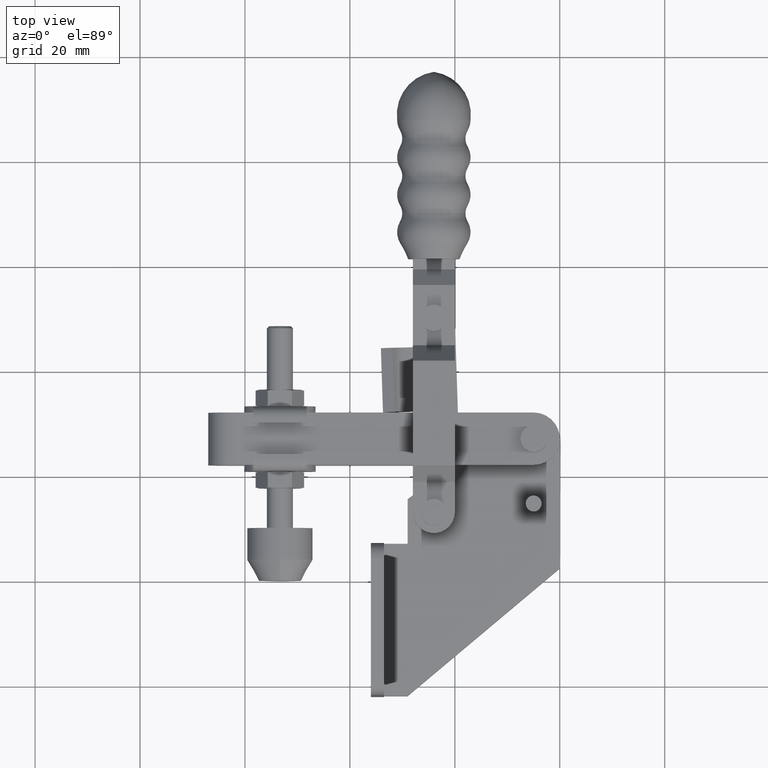
[diagram: clean part render]
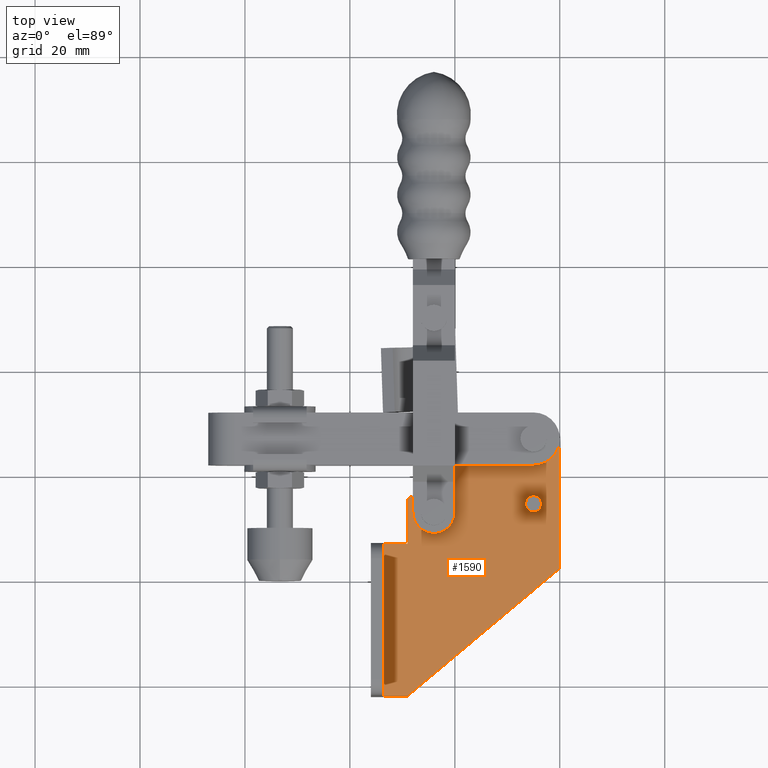
[diagram: same view with one face highlighted and labeled with its STEP entity id]
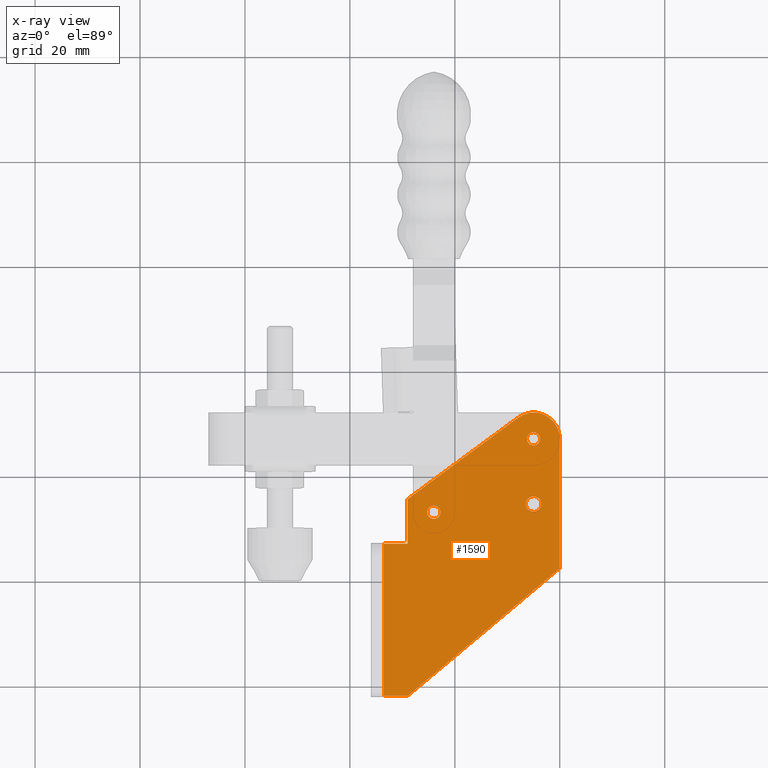
[diagram: x-ray of the same camera — body ghosted, the highlighted face saturated]
A machine part, top view. The second image highlights one B-rep face of the part: STEP entity #1590.
The next image is the same camera in x-ray: the body ghosted, the highlighted face saturated — about 0% of this face is hidden behind the body in this view.
In plain terms, the highlighted planar face has unit normal (0, 0, 1).
Its self-contained STEP definition (entity closure, byte-faithful):
#5 = EDGE_CURVE ( 'NONE', #3100, #9376, #5206, .T. ) ;
#19 = CARTESIAN_POINT ( 'NONE',  ( -6.249999999999770000, 27.00000000000003200, 2.500000000000041700 ) ) ;
#37 = FACE_BOUND ( 'NONE', #2437, .T. ) ;
#47 = LINE ( 'NONE', #8385, #1880 ) ;
#127 = EDGE_CURVE ( 'NONE', #5030, #8038, #3337, .T. ) ;
#130 = CARTESIAN_POINT ( 'NONE',  ( -4.999999999999769100, 27.00000000000003200, 2.500000000000041700 ) ) ;
#327 = EDGE_CURVE ( 'NONE', #4370, #1558, #7492, .T. ) ;
#735 = ORIENTED_EDGE ( 'NONE', *, *, #1019, .F. ) ;
#813 = ORIENTED_EDGE ( 'NONE', *, *, #7325, .F. ) ;
#868 = CARTESIAN_POINT ( 'NONE',  ( -22.74999999999989700, 13.00000000000001800, 2.500000000000041700 ) ) ;
#875 = AXIS2_PLACEMENT_3D ( 'NONE', #1736, #9979, #9383 ) ;
#925 = DIRECTION ( 'NONE',  ( 1.000000000000000000, 0.0000000000000000000, 0.0000000000000000000 ) ) ;
#961 = CARTESIAN_POINT ( 'NONE',  ( -28.99999999999979000, 7.020000000000015600, 2.500000000000041700 ) ) ;
#1019 = EDGE_CURVE ( 'NONE', #9376, #3100, #6730, .T. ) ;
#1064 = VECTOR ( 'NONE', #8188, 1000.000000000000000 ) ;
#1179 = ORIENTED_EDGE ( 'NONE', *, *, #1888, .T. ) ;
#1210 = CARTESIAN_POINT ( 'NONE',  ( -7.965995190249059600, 31.02527918676689500, 2.500000000000041700 ) ) ;
#1241 = CARTESIAN_POINT ( 'NONE',  ( -4.999999999999769100, 27.00000000000003200, 2.500000000000041700 ) ) ;
#1298 = ORIENTED_EDGE ( 'NONE', *, *, #2028, .F. ) ;
#1481 = CIRCLE ( 'NONE', #9185, 1.250000000000001100 ) ;
#1558 = VERTEX_POINT ( 'NONE', #4074 ) ;
#1590 = ADVANCED_FACE ( 'NONE', ( #37, #4216, #2358, #8217 ), #4252, .T. ) ;
#1622 = CARTESIAN_POINT ( 'NONE',  ( -3.749999999999769100, 27.00000000000003200, 2.500000000000041700 ) ) ;
#1736 = CARTESIAN_POINT ( 'NONE',  ( -23.99999999999989700, 13.00000000000001800, 2.500000000000041700 ) ) ;
#1763 = EDGE_LOOP ( 'NONE', ( #8063, #4008 ) ) ;
#1770 = EDGE_LOOP ( 'NONE', ( #1298, #813 ) ) ;
#1776 = VECTOR ( 'NONE', #6248, 1000.000000000000000 ) ;
#1880 = VECTOR ( 'NONE', #6748, 1000.000000000000100 ) ;
#1888 = EDGE_CURVE ( 'NONE', #5544, #7832, #5575, .T. ) ;
#2028 = EDGE_CURVE ( 'NONE', #5406, #8124, #9096, .T. ) ;
#2175 = AXIS2_PLACEMENT_3D ( 'NONE', #8582, #3758, #9345 ) ;
#2191 = DIRECTION ( 'NONE',  ( 0.7660444431189765700, 0.6427876096865410300, 0.0000000000000000000 ) ) ;
#2284 = CARTESIAN_POINT ( 'NONE',  ( -3.499999999999769500, 14.56000000000002400, 2.500000000000041700 ) ) ;
#2288 = EDGE_CURVE ( 'NONE', #7597, #4370, #6936, .T. ) ;
#2315 = DIRECTION ( 'NONE',  ( 0.0000000000000000000, 0.0000000000000000000, 1.000000000000000000 ) ) ;
#2355 = CARTESIAN_POINT ( 'NONE',  ( -33.49999999999958800, 7.020000000000015600, 2.500000000000041700 ) ) ;
#2358 = FACE_BOUND ( 'NONE', #1770, .T. ) ;
#2437 = EDGE_LOOP ( 'NONE', ( #8750, #735 ) ) ;
#2656 = VECTOR ( 'NONE', #2191, 1000.000000000000000 ) ;
#2904 = LINE ( 'NONE', #6947, #2656 ) ;
#2952 = VECTOR ( 'NONE', #9529, 1000.000000000000000 ) ;
#3100 = VERTEX_POINT ( 'NONE', #19 ) ;
#3337 = CIRCLE ( 'NONE', #2175, 1.500000000000000000 ) ;
#3357 = CARTESIAN_POINT ( 'NONE',  ( -28.99999999999979000, 7.020000000000015600, 2.500000000000041700 ) ) ;
#3359 = CARTESIAN_POINT ( 'NONE',  ( -6.499999999999770000, 14.56000000000002400, 2.500000000000041700 ) ) ;
#3492 = CARTESIAN_POINT ( 'NONE',  ( -23.99999999999989700, 13.00000000000001800, 2.500000000000041700 ) ) ;
#3709 = AXIS2_PLACEMENT_3D ( 'NONE', #7769, #7799, #7812 ) ;
#3758 = DIRECTION ( 'NONE',  ( 0.0000000000000000000, 0.0000000000000000000, 1.000000000000000000 ) ) ;
#3865 = ORIENTED_EDGE ( 'NONE', *, *, #5021, .T. ) ;
#3957 = ORIENTED_EDGE ( 'NONE', *, *, #9181, .T. ) ;
#4008 = ORIENTED_EDGE ( 'NONE', *, *, #127, .F. ) ;
#4074 = CARTESIAN_POINT ( 'NONE',  ( -28.99999999999957700, -21.97999999999998600, 2.500000000000041700 ) ) ;
#4216 = FACE_BOUND ( 'NONE', #1763, .T. ) ;
#4252 = PLANE ( 'NONE',  #8960 ) ;
#4304 = DIRECTION ( 'NONE',  ( 1.000000000000000000, 0.0000000000000000000, 0.0000000000000000000 ) ) ;
#4370 = VERTEX_POINT ( 'NONE', #8127 ) ;
#4402 = CARTESIAN_POINT ( 'NONE',  ( -4.999999999999769100, 14.56000000000002400, 2.500000000000041700 ) ) ;
#4437 = CARTESIAN_POINT ( 'NONE',  ( -23.99999999999989700, 13.00000000000001800, 2.500000000000041700 ) ) ;
#4462 = DIRECTION ( 'NONE',  ( 0.0000000000000000000, 0.0000000000000000000, 1.000000000000000000 ) ) ;
#4535 = DIRECTION ( 'NONE',  ( 1.000000000000000000, 0.0000000000000000000, -0.0000000000000000000 ) ) ;
#4538 = EDGE_CURVE ( 'NONE', #8038, #5030, #7880, .T. ) ;
#4728 = ORIENTED_EDGE ( 'NONE', *, *, #4945, .T. ) ;
#4928 = DIRECTION ( 'NONE',  ( -0.0000000000000000000, -1.000000000000000000, -0.0000000000000000000 ) ) ;
#4945 = EDGE_CURVE ( 'NONE', #7296, #8920, #5780, .T. ) ;
#4996 = CARTESIAN_POINT ( 'NONE',  ( 2.333203075188805500E-013, 27.00000000000003200, 2.500000000000041700 ) ) ;
#5021 = EDGE_CURVE ( 'NONE', #6893, #5544, #5272, .T. ) ;
#5030 = VERTEX_POINT ( 'NONE', #3359 ) ;
#5173 = DIRECTION ( 'NONE',  ( 1.000000000000000000, 0.0000000000000000000, 0.0000000000000000000 ) ) ;
#5181 = DIRECTION ( 'NONE',  ( 0.0000000000000000000, 0.0000000000000000000, 1.000000000000000000 ) ) ;
#5206 = CIRCLE ( 'NONE', #6093, 1.250000000000000200 ) ;
#5224 = ORIENTED_EDGE ( 'NONE', *, *, #2288, .T. ) ;
#5272 = LINE ( 'NONE', #7361, #1064 ) ;
#5406 = VERTEX_POINT ( 'NONE', #5630 ) ;
#5544 = VERTEX_POINT ( 'NONE', #4996 ) ;
#5575 = CIRCLE ( 'NONE', #3709, 5.000000000000002700 ) ;
#5581 = AXIS2_PLACEMENT_3D ( 'NONE', #4402, #9978, #5173 ) ;
#5630 = CARTESIAN_POINT ( 'NONE',  ( -25.24999999999989700, 13.00000000000001800, 2.500000000000041700 ) ) ;
#5668 = CARTESIAN_POINT ( 'NONE',  ( -35.99999999999958100, -21.97999999999998600, 2.500000000000041700 ) ) ;
#5780 = LINE ( 'NONE', #961, #9775 ) ;
#5874 = EDGE_CURVE ( 'NONE', #8920, #7597, #10276, .T. ) ;
#6093 = AXIS2_PLACEMENT_3D ( 'NONE', #1241, #5181, #8438 ) ;
#6248 = DIRECTION ( 'NONE',  ( -1.000000000000000000, -0.0000000000000000000, -0.0000000000000000000 ) ) ;
#6502 = AXIS2_PLACEMENT_3D ( 'NONE', #130, #2315, #10063 ) ;
#6730 = CIRCLE ( 'NONE', #6502, 1.250000000000000200 ) ;
#6748 = DIRECTION ( 'NONE',  ( -0.8050558373533658300, -0.5931990380498528600, 0.0000000000000000000 ) ) ;
#6813 = EDGE_CURVE ( 'NONE', #7832, #7296, #47, .T. ) ;
#6893 = VERTEX_POINT ( 'NONE', #10128 ) ;
#6936 = LINE ( 'NONE', #10081, #2952 ) ;
#6947 = CARTESIAN_POINT ( 'NONE',  ( -28.99999999999957700, -21.97999999999998600, 2.500000000000041700 ) ) ;
#7226 = EDGE_LOOP ( 'NONE', ( #8017, #5224, #10321, #3957, #3865, #1179, #9732, #4728 ) ) ;
#7296 = VERTEX_POINT ( 'NONE', #7432 ) ;
#7325 = EDGE_CURVE ( 'NONE', #8124, #5406, #1481, .T. ) ;
#7361 = CARTESIAN_POINT ( 'NONE',  ( 2.697495005143935000E-013, 2.353889304141120000, 2.500000000000041700 ) ) ;
#7432 = CARTESIAN_POINT ( 'NONE',  ( -28.99999999999979000, 15.52653880063466700, 2.500000000000041700 ) ) ;
#7492 = LINE ( 'NONE', #5668, #10096 ) ;
#7597 = VERTEX_POINT ( 'NONE', #2355 ) ;
#7769 = CARTESIAN_POINT ( 'NONE',  ( -4.999999999999769100, 27.00000000000003200, 2.500000000000041700 ) ) ;
#7799 = DIRECTION ( 'NONE',  ( 0.0000000000000000000, 0.0000000000000000000, 1.000000000000000000 ) ) ;
#7812 = DIRECTION ( 'NONE',  ( 1.000000000000000000, 0.0000000000000000000, 0.0000000000000000000 ) ) ;
#7832 = VERTEX_POINT ( 'NONE', #1210 ) ;
#7880 = CIRCLE ( 'NONE', #5581, 1.500000000000000000 ) ;
#8017 = ORIENTED_EDGE ( 'NONE', *, *, #5874, .T. ) ;
#8038 = VERTEX_POINT ( 'NONE', #2284 ) ;
#8063 = ORIENTED_EDGE ( 'NONE', *, *, #4538, .F. ) ;
#8124 = VERTEX_POINT ( 'NONE', #868 ) ;
#8127 = CARTESIAN_POINT ( 'NONE',  ( -33.49999999999958100, -21.97999999999998600, 2.500000000000041700 ) ) ;
#8188 = DIRECTION ( 'NONE',  ( -3.202530376129759600E-015, 1.000000000000000000, 0.0000000000000000000 ) ) ;
#8217 = FACE_OUTER_BOUND ( 'NONE', #7226, .T. ) ;
#8385 = CARTESIAN_POINT ( 'NONE',  ( -7.965995190249059600, 31.02527918676689500, 2.500000000000041700 ) ) ;
#8438 = DIRECTION ( 'NONE',  ( 1.000000000000000000, 0.0000000000000000000, 0.0000000000000000000 ) ) ;
#8582 = CARTESIAN_POINT ( 'NONE',  ( -4.999999999999769100, 14.56000000000002400, 2.500000000000041700 ) ) ;
#8750 = ORIENTED_EDGE ( 'NONE', *, *, #5, .F. ) ;
#8920 = VERTEX_POINT ( 'NONE', #3357 ) ;
#8960 = AXIS2_PLACEMENT_3D ( 'NONE', #4437, #4462, #4535 ) ;
#9096 = CIRCLE ( 'NONE', #875, 1.250000000000001100 ) ;
#9098 = DIRECTION ( 'NONE',  ( 0.0000000000000000000, 0.0000000000000000000, 1.000000000000000000 ) ) ;
#9181 = EDGE_CURVE ( 'NONE', #1558, #6893, #2904, .T. ) ;
#9185 = AXIS2_PLACEMENT_3D ( 'NONE', #3492, #9098, #4304 ) ;
#9345 = DIRECTION ( 'NONE',  ( 1.000000000000000000, 0.0000000000000000000, 0.0000000000000000000 ) ) ;
#9376 = VERTEX_POINT ( 'NONE', #1622 ) ;
#9383 = DIRECTION ( 'NONE',  ( 1.000000000000000000, 0.0000000000000000000, 0.0000000000000000000 ) ) ;
#9529 = DIRECTION ( 'NONE',  ( 1.196361017915039200E-016, -1.000000000000000000, 0.0000000000000000000 ) ) ;
#9732 = ORIENTED_EDGE ( 'NONE', *, *, #6813, .T. ) ;
#9775 = VECTOR ( 'NONE', #4928, 1000.000000000000000 ) ;
#9978 = DIRECTION ( 'NONE',  ( 0.0000000000000000000, 0.0000000000000000000, 1.000000000000000000 ) ) ;
#9979 = DIRECTION ( 'NONE',  ( 0.0000000000000000000, 0.0000000000000000000, 1.000000000000000000 ) ) ;
#10063 = DIRECTION ( 'NONE',  ( 1.000000000000000000, 0.0000000000000000000, 0.0000000000000000000 ) ) ;
#10081 = CARTESIAN_POINT ( 'NONE',  ( -33.49999999999958800, 13.00000000000001600, 2.500000000000041700 ) ) ;
#10096 = VECTOR ( 'NONE', #925, 1000.000000000000000 ) ;
#10128 = CARTESIAN_POINT ( 'NONE',  ( 2.697495005143935000E-013, 2.353889304141120000, 2.500000000000041700 ) ) ;
#10262 = CARTESIAN_POINT ( 'NONE',  ( -35.99999999999958100, 7.020000000000015600, 2.500000000000041700 ) ) ;
#10276 = LINE ( 'NONE', #10262, #1776 ) ;
#10321 = ORIENTED_EDGE ( 'NONE', *, *, #327, .T. ) ;